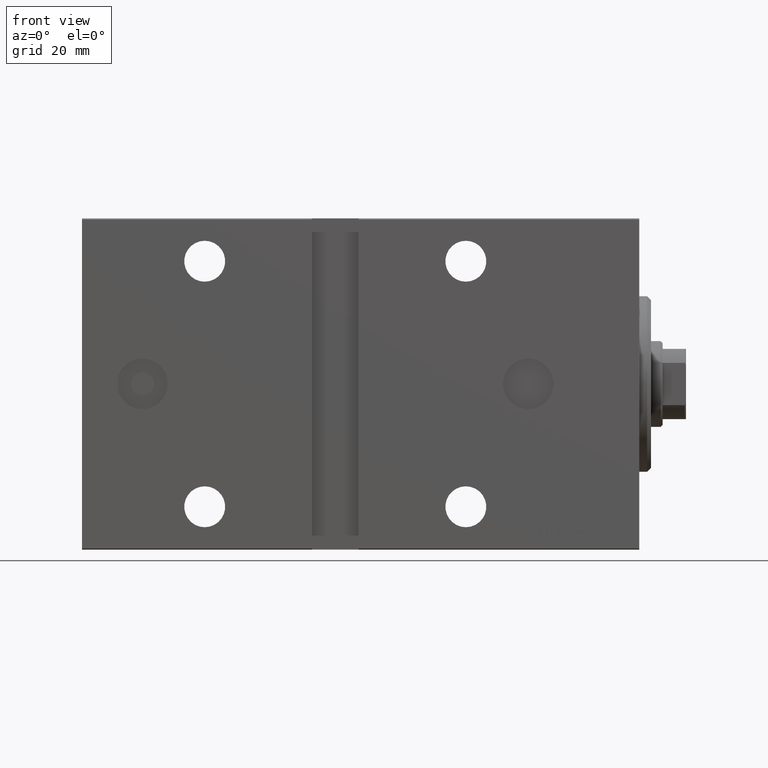
[diagram: clean part render]
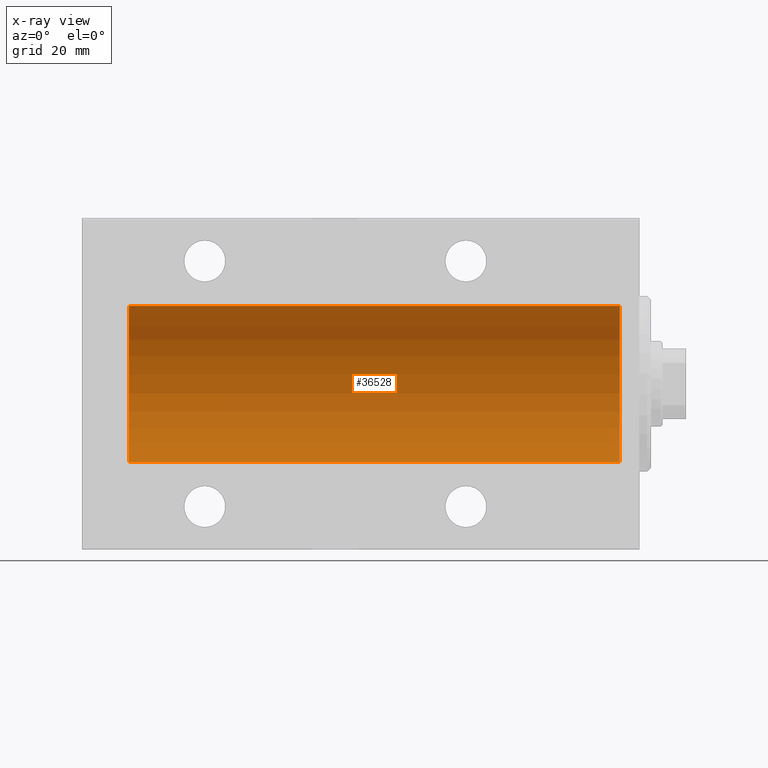
[diagram: x-ray — body ghosted, one internal face saturated and labeled with its STEP entity id]
A machine part, front view, then the same camera in x-ray: the body is ghosted and one INTERNAL B-rep face — a face not visible from any outside direction — is saturated and labeled: STEP entity #36528.
In plain terms, the highlighted cylindrical surface (partial cylindrical patch) has radius 20 mm, axis along (1, 0, -0).
Its self-contained STEP definition (entity closure, byte-faithful):
#330 = ORIENTED_EDGE ( 'NONE', *, *, #21878, .T. ) ;
#2921 = FACE_OUTER_BOUND ( 'NONE', #11300, .T. ) ;
#3902 = DIRECTION ( 'NONE',  ( 0.000000000000000000, 0.000000000000000000, 1.000000000000000000 ) ) ;
#4018 = CARTESIAN_POINT ( 'NONE',  ( 131.0000000000000000, 2.449293598294706513E-15, -20.00000000000000000 ) ) ;
#4995 = VERTEX_POINT ( 'NONE', #30475 ) ;
#5972 = CARTESIAN_POINT ( 'NONE',  ( 131.0000000000000000, 0.000000000000000000, 0.000000000000000000 ) ) ;
#6117 = CARTESIAN_POINT ( 'NONE',  ( 131.0000000000000000, 2.449293598294706513E-15, -20.00000000000000000 ) ) ;
#7311 = AXIS2_PLACEMENT_3D ( 'NONE', #8954, #28696, #22828 ) ;
#7991 = EDGE_CURVE ( 'NONE', #8850, #12510, #26014, .T. ) ;
#8850 = VERTEX_POINT ( 'NONE', #32010 ) ;
#8954 = CARTESIAN_POINT ( 'NONE',  ( 5.000000000000004441, 0.000000000000000000, 0.000000000000000000 ) ) ;
#9649 = LINE ( 'NONE', #19642, #16870 ) ;
#11054 = VERTEX_POINT ( 'NONE', #6117 ) ;
#11300 = EDGE_LOOP ( 'NONE', ( #38701, #330, #24021, #19067 ) ) ;
#11315 = VECTOR ( 'NONE', #36980, 1000.000000000000000 ) ;
#12510 = VERTEX_POINT ( 'NONE', #36648 ) ;
#13799 = EDGE_CURVE ( 'NONE', #4995, #12510, #9649, .T. ) ;
#16597 = DIRECTION ( 'NONE',  ( -1.000000000000000000, -0.000000000000000000, -0.000000000000000000 ) ) ;
#16870 = VECTOR ( 'NONE', #16597, 1000.000000000000000 ) ;
#19067 = ORIENTED_EDGE ( 'NONE', *, *, #13799, .F. ) ;
#19642 = CARTESIAN_POINT ( 'NONE',  ( 131.0000000000000000, 0.000000000000000000, 20.00000000000000000 ) ) ;
#19739 = CARTESIAN_POINT ( 'NONE',  ( 131.0000000000000000, 0.000000000000000000, 0.000000000000000000 ) ) ;
#21878 = EDGE_CURVE ( 'NONE', #11054, #8850, #40016, .T. ) ;
#22828 = DIRECTION ( 'NONE',  ( 0.000000000000000000, 0.000000000000000000, 1.000000000000000000 ) ) ;
#22879 = EDGE_CURVE ( 'NONE', #11054, #4995, #35506, .T. ) ;
#22977 = DIRECTION ( 'NONE',  ( -1.000000000000000000, 0.000000000000000000, 0.000000000000000000 ) ) ;
#24021 = ORIENTED_EDGE ( 'NONE', *, *, #7991, .T. ) ;
#25267 = DIRECTION ( 'NONE',  ( -1.000000000000000000, -0.000000000000000000, -0.000000000000000000 ) ) ;
#26014 = CIRCLE ( 'NONE', #7311, 20.00000000000000000 ) ;
#28696 = DIRECTION ( 'NONE',  ( -1.000000000000000000, 0.000000000000000000, 0.000000000000000000 ) ) ;
#30475 = CARTESIAN_POINT ( 'NONE',  ( 131.0000000000000000, 0.000000000000000000, 20.00000000000000000 ) ) ;
#31983 = DIRECTION ( 'NONE',  ( 0.000000000000000000, 0.000000000000000000, 1.000000000000000000 ) ) ;
#32010 = CARTESIAN_POINT ( 'NONE',  ( 5.000000000000004441, 2.449293598294706513E-15, -20.00000000000000000 ) ) ;
#35505 = AXIS2_PLACEMENT_3D ( 'NONE', #5972, #25267, #31983 ) ;
#35506 = CIRCLE ( 'NONE', #40374, 20.00000000000000000 ) ;
#36528 = ADVANCED_FACE ( 'NONE', ( #2921 ), #41530, .F. ) ;
#36648 = CARTESIAN_POINT ( 'NONE',  ( 5.000000000000004441, 0.000000000000000000, 20.00000000000000000 ) ) ;
#36980 = DIRECTION ( 'NONE',  ( -1.000000000000000000, -0.000000000000000000, -0.000000000000000000 ) ) ;
#38701 = ORIENTED_EDGE ( 'NONE', *, *, #22879, .F. ) ;
#40016 = LINE ( 'NONE', #4018, #11315 ) ;
#40374 = AXIS2_PLACEMENT_3D ( 'NONE', #19739, #22977, #3902 ) ;
#41530 = CYLINDRICAL_SURFACE ( 'NONE', #35505, 20.00000000000000000 ) ;